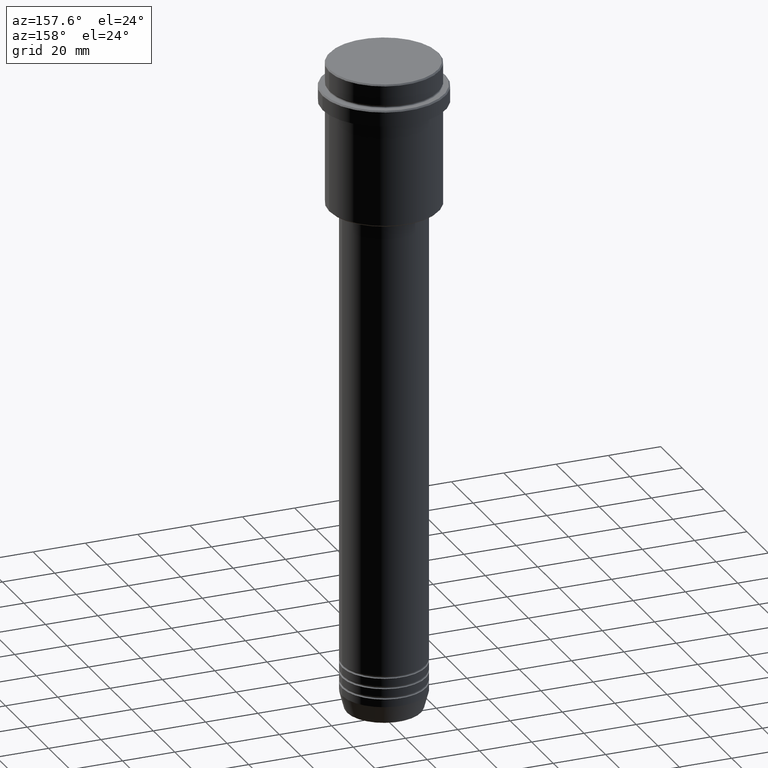
[diagram: clean part render]
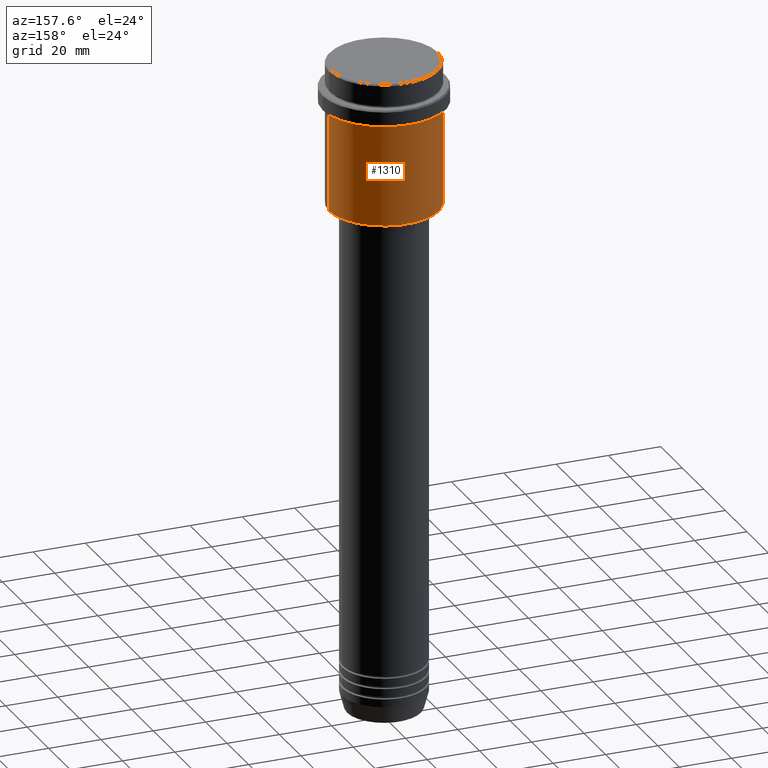
[diagram: same view with one face highlighted and labeled with its STEP entity id]
A machine part, auxiliary view. The second image highlights one B-rep face of the part: STEP entity #1310.
In plain terms, the highlighted cylindrical surface (partial cylindrical patch) has radius 21 mm, axis along (-0, -0, 1).
Its self-contained STEP definition (entity closure, byte-faithful):
#46 = CARTESIAN_POINT ( 'NONE',  ( 0.000000000000000000, 0.000000000000000000, -16.00000000000000355 ) ) ;
#83 = DIRECTION ( 'NONE',  ( -0.000000000000000000, -0.000000000000000000, 1.000000000000000000 ) ) ;
#85 = ORIENTED_EDGE ( 'NONE', *, *, #695, .F. ) ;
#96 = AXIS2_PLACEMENT_3D ( 'NONE', #46, #804, #393 ) ;
#117 = DIRECTION ( 'NONE',  ( -0.000000000000000000, -0.000000000000000000, 1.000000000000000000 ) ) ;
#172 = CIRCLE ( 'NONE', #96, 20.99999999999999645 ) ;
#209 = CARTESIAN_POINT ( 'NONE',  ( 0.000000000000000000, 0.000000000000000000, -54.49999999999995026 ) ) ;
#285 = EDGE_CURVE ( 'NONE', #833, #368, #512, .T. ) ;
#348 = CARTESIAN_POINT ( 'NONE',  ( -20.99999999999999645, 2.571758278209441267E-15, 0.000000000000000000 ) ) ;
#368 = VERTEX_POINT ( 'NONE', #622 ) ;
#390 = EDGE_LOOP ( 'NONE', ( #812, #905, #85, #484 ) ) ;
#393 = DIRECTION ( 'NONE',  ( 1.000000000000000000, 0.000000000000000000, 0.000000000000000000 ) ) ;
#484 = ORIENTED_EDGE ( 'NONE', *, *, #889, .F. ) ;
#512 = CIRCLE ( 'NONE', #1087, 20.99999999999999645 ) ;
#520 = DIRECTION ( 'NONE',  ( 1.000000000000000000, 0.000000000000000000, 0.000000000000000000 ) ) ;
#552 = VERTEX_POINT ( 'NONE', #643 ) ;
#619 = VECTOR ( 'NONE', #117, 1000.000000000000000 ) ;
#622 = CARTESIAN_POINT ( 'NONE',  ( -20.99999999999999645, 2.571758278209441267E-15, -54.49999999999995026 ) ) ;
#643 = CARTESIAN_POINT ( 'NONE',  ( 20.99999999999999645, 0.000000000000000000, -16.00000000000000355 ) ) ;
#695 = EDGE_CURVE ( 'NONE', #552, #1181, #172, .T. ) ;
#724 = CYLINDRICAL_SURFACE ( 'NONE', #975, 20.99999999999999645 ) ;
#734 = CARTESIAN_POINT ( 'NONE',  ( 20.99999999999999645, 0.000000000000000000, -54.49999999999995026 ) ) ;
#748 = DIRECTION ( 'NONE',  ( -0.000000000000000000, -0.000000000000000000, 1.000000000000000000 ) ) ;
#804 = DIRECTION ( 'NONE',  ( -0.000000000000000000, -0.000000000000000000, 1.000000000000000000 ) ) ;
#812 = ORIENTED_EDGE ( 'NONE', *, *, #285, .T. ) ;
#833 = VERTEX_POINT ( 'NONE', #734 ) ;
#870 = FACE_OUTER_BOUND ( 'NONE', #390, .T. ) ;
#881 = DIRECTION ( 'NONE',  ( -0.000000000000000000, -0.000000000000000000, 1.000000000000000000 ) ) ;
#889 = EDGE_CURVE ( 'NONE', #833, #552, #1318, .T. ) ;
#905 = ORIENTED_EDGE ( 'NONE', *, *, #1357, .T. ) ;
#975 = AXIS2_PLACEMENT_3D ( 'NONE', #1053, #83, #520 ) ;
#996 = LINE ( 'NONE', #348, #1169 ) ;
#1009 = CARTESIAN_POINT ( 'NONE',  ( 20.99999999999999645, 0.000000000000000000, 0.000000000000000000 ) ) ;
#1053 = CARTESIAN_POINT ( 'NONE',  ( 0.000000000000000000, 0.000000000000000000, 0.000000000000000000 ) ) ;
#1087 = AXIS2_PLACEMENT_3D ( 'NONE', #209, #748, #1416 ) ;
#1167 = CARTESIAN_POINT ( 'NONE',  ( -20.99999999999999645, 2.571758278209441267E-15, -16.00000000000000355 ) ) ;
#1169 = VECTOR ( 'NONE', #881, 1000.000000000000000 ) ;
#1181 = VERTEX_POINT ( 'NONE', #1167 ) ;
#1310 = ADVANCED_FACE ( 'NONE', ( #870 ), #724, .T. ) ;
#1318 = LINE ( 'NONE', #1009, #619 ) ;
#1357 = EDGE_CURVE ( 'NONE', #368, #1181, #996, .T. ) ;
#1416 = DIRECTION ( 'NONE',  ( -1.000000000000000000, 0.000000000000000000, 0.000000000000000000 ) ) ;